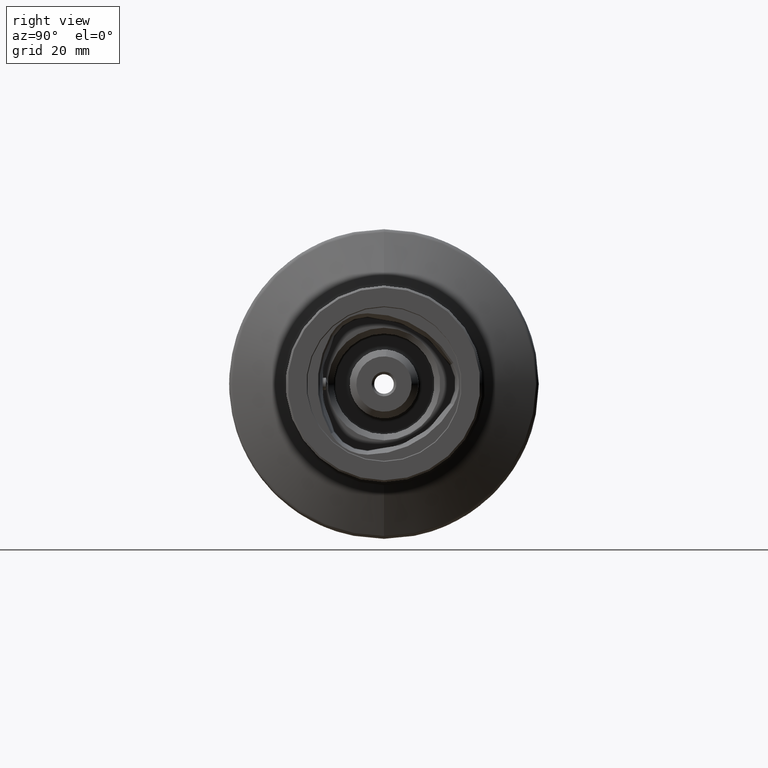
[diagram: clean part render]
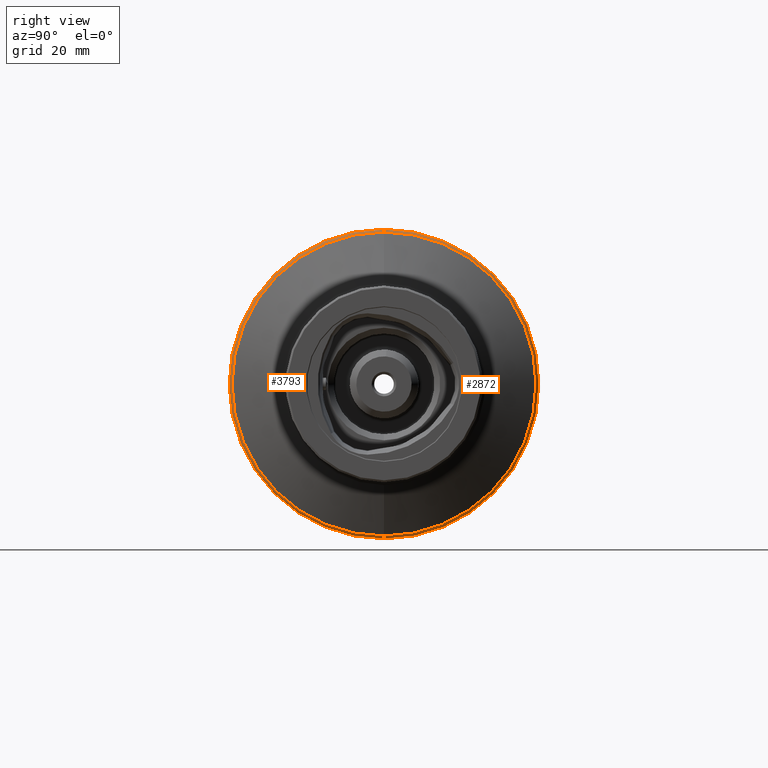
[diagram: same view with one multi-face feature highlighted, each face labeled with its STEP entity id]
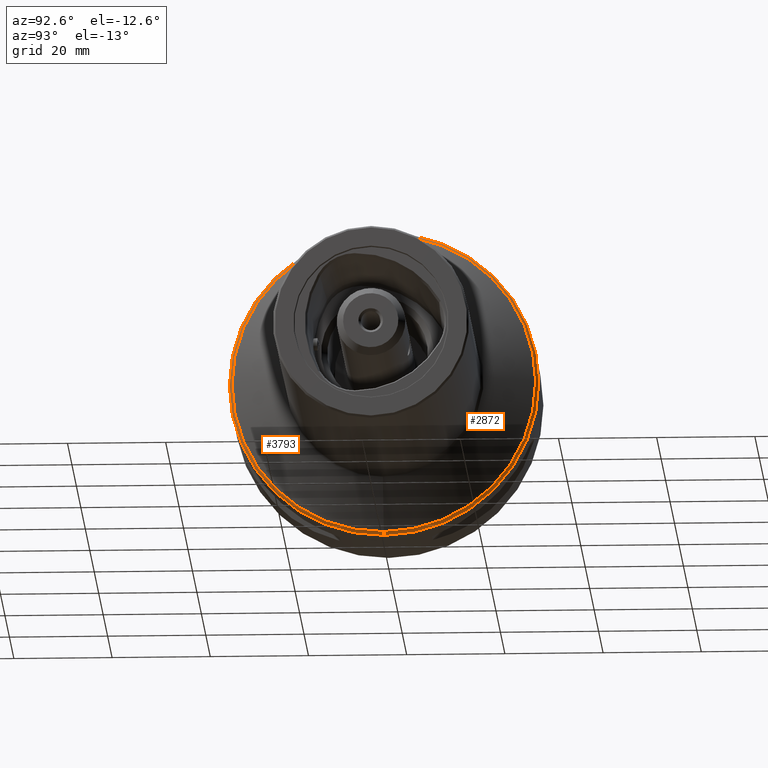
[diagram: same view with one multi-face feature highlighted, each face labeled with its STEP entity id]
A machine part, right view. The highlighted faces form ONE feature: a constant-radius fillet chain: 2 tangent blend faces with common blend radius 1 mm. The faces share edges in the B-rep.
A second angle (auxiliary view) of the same feature is appended — it is thin or edge-on in the first view.
Their STEP definitions:
[1] entity #2872 (Torus):
#150 = TOROIDAL_SURFACE ( 'NONE', #5644, 30.50000000000000000, 1.000000000000000000 ) ;
#306 = FACE_OUTER_BOUND ( 'NONE', #5561, .T. ) ;
#494 = VERTEX_POINT ( 'NONE', #1531 ) ;
#583 = EDGE_CURVE ( 'NONE', #4055, #3127, #1663, .T. ) ;
#1007 = EDGE_CURVE ( 'NONE', #494, #3127, #1476, .T. ) ;
#1476 = CIRCLE ( 'NONE', #5757, 1.000000000000000900 ) ;
#1531 = CARTESIAN_POINT ( 'NONE',  ( 21.36292973919250200, 0.0000000000000000000, 31.50000000000000000 ) ) ;
#1648 = AXIS2_PLACEMENT_3D ( 'NONE', #4849, #6560, #4924 ) ;
#1663 = CIRCLE ( 'NONE', #1954, 30.92261826174070500 ) ;
#1694 = AXIS2_PLACEMENT_3D ( 'NONE', #5582, #3992, #3970 ) ;
#1695 = CARTESIAN_POINT ( 'NONE',  ( 21.36292973919250200, 3.857637417314162700E-015, -31.50000000000000000 ) ) ;
#1954 = AXIS2_PLACEMENT_3D ( 'NONE', #3071, #6851, #4076 ) ;
#1971 = EDGE_CURVE ( 'NONE', #2731, #4055, #4819, .T. ) ;
#2123 = CARTESIAN_POINT ( 'NONE',  ( 21.36292973919250200, 0.0000000000000000000, 0.0000000000000000000 ) ) ;
#2517 = CARTESIAN_POINT ( 'NONE',  ( 22.26923752622914800, 0.0000000000000000000, 30.92261826174070500 ) ) ;
#2731 = VERTEX_POINT ( 'NONE', #1695 ) ;
#2784 = CARTESIAN_POINT ( 'NONE',  ( 21.36292973919250200, 3.735172737399427500E-015, 30.50000000000000000 ) ) ;
#2869 = EDGE_CURVE ( 'NONE', #494, #2731, #4291, .T. ) ;
#2872 = ADVANCED_FACE ( 'NONE', ( #306 ), #150, .T. ) ;
#2889 = ORIENTED_EDGE ( 'NONE', *, *, #1007, .T. ) ;
#3071 = CARTESIAN_POINT ( 'NONE',  ( 22.26923752622914800, 0.0000000000000000000, 0.0000000000000000000 ) ) ;
#3127 = VERTEX_POINT ( 'NONE', #2517 ) ;
#3961 = ORIENTED_EDGE ( 'NONE', *, *, #2869, .F. ) ;
#3970 = DIRECTION ( 'NONE',  ( 0.0000000000000000000, 0.0000000000000000000, -1.000000000000000000 ) ) ;
#3992 = DIRECTION ( 'NONE',  ( 0.0000000000000000000, -1.000000000000000000, 0.0000000000000000000 ) ) ;
#4055 = VERTEX_POINT ( 'NONE', #4459 ) ;
#4076 = DIRECTION ( 'NONE',  ( 0.0000000000000000000, 0.0000000000000000000, -1.000000000000000000 ) ) ;
#4291 = CIRCLE ( 'NONE', #1648, 31.50000000000000000 ) ;
#4310 = DIRECTION ( 'NONE',  ( 1.000000000000000000, 0.0000000000000000000, 0.0000000000000000000 ) ) ;
#4459 = CARTESIAN_POINT ( 'NONE',  ( 22.26923752622914800, 3.786928547549624100E-015, -30.92261826174070500 ) ) ;
#4819 = CIRCLE ( 'NONE', #1694, 1.000000000000000900 ) ;
#4849 = CARTESIAN_POINT ( 'NONE',  ( 21.36292973919250200, 0.0000000000000000000, 0.0000000000000000000 ) ) ;
#4924 = DIRECTION ( 'NONE',  ( 0.0000000000000000000, 0.0000000000000000000, -1.000000000000000000 ) ) ;
#5487 = ORIENTED_EDGE ( 'NONE', *, *, #1971, .F. ) ;
#5561 = EDGE_LOOP ( 'NONE', ( #3961, #2889, #5867, #5487 ) ) ;
#5582 = CARTESIAN_POINT ( 'NONE',  ( 21.36292973919250200, 0.0000000000000000000, -30.50000000000000000 ) ) ;
#5644 = AXIS2_PLACEMENT_3D ( 'NONE', #2123, #4310, #6531 ) ;
#5747 = DIRECTION ( 'NONE',  ( 0.0000000000000000000, 1.224646799147349500E-016, 1.000000000000000000 ) ) ;
#5757 = AXIS2_PLACEMENT_3D ( 'NONE', #2784, #6467, #5747 ) ;
#5867 = ORIENTED_EDGE ( 'NONE', *, *, #583, .F. ) ;
#6467 = DIRECTION ( 'NONE',  ( 0.0000000000000000000, 1.000000000000000000, -1.224646799147353200E-016 ) ) ;
#6531 = DIRECTION ( 'NONE',  ( 0.0000000000000000000, 0.0000000000000000000, -1.000000000000000000 ) ) ;
#6560 = DIRECTION ( 'NONE',  ( -1.000000000000000000, -0.0000000000000000000, -0.0000000000000000000 ) ) ;
#6851 = DIRECTION ( 'NONE',  ( 1.000000000000000000, 0.0000000000000000000, 0.0000000000000000000 ) ) ;
[2] entity #3793 (Torus):
#494 = VERTEX_POINT ( 'NONE', #1531 ) ;
#551 = DIRECTION ( 'NONE',  ( 1.000000000000000000, 0.0000000000000000000, 0.0000000000000000000 ) ) ;
#634 = DIRECTION ( 'NONE',  ( -1.000000000000000000, -0.0000000000000000000, -0.0000000000000000000 ) ) ;
#1007 = EDGE_CURVE ( 'NONE', #494, #3127, #1476, .T. ) ;
#1022 = EDGE_LOOP ( 'NONE', ( #6402, #1321, #6578, #6942 ) ) ;
#1321 = ORIENTED_EDGE ( 'NONE', *, *, #6205, .F. ) ;
#1463 = AXIS2_PLACEMENT_3D ( 'NONE', #3776, #551, #4336 ) ;
#1476 = CIRCLE ( 'NONE', #5757, 1.000000000000000900 ) ;
#1486 = FACE_OUTER_BOUND ( 'NONE', #1022, .T. ) ;
#1531 = CARTESIAN_POINT ( 'NONE',  ( 21.36292973919250200, 0.0000000000000000000, 31.50000000000000000 ) ) ;
#1694 = AXIS2_PLACEMENT_3D ( 'NONE', #5582, #3992, #3970 ) ;
#1695 = CARTESIAN_POINT ( 'NONE',  ( 21.36292973919250200, 3.857637417314162700E-015, -31.50000000000000000 ) ) ;
#1971 = EDGE_CURVE ( 'NONE', #2731, #4055, #4819, .T. ) ;
#2221 = CARTESIAN_POINT ( 'NONE',  ( 22.26923752622914800, 0.0000000000000000000, 0.0000000000000000000 ) ) ;
#2388 = AXIS2_PLACEMENT_3D ( 'NONE', #2707, #634, #4462 ) ;
#2420 = TOROIDAL_SURFACE ( 'NONE', #1463, 30.50000000000000000, 1.000000000000000000 ) ;
#2517 = CARTESIAN_POINT ( 'NONE',  ( 22.26923752622914800, 0.0000000000000000000, 30.92261826174070500 ) ) ;
#2674 = DIRECTION ( 'NONE',  ( 1.000000000000000000, 0.0000000000000000000, 0.0000000000000000000 ) ) ;
#2707 = CARTESIAN_POINT ( 'NONE',  ( 21.36292973919250200, 0.0000000000000000000, 0.0000000000000000000 ) ) ;
#2731 = VERTEX_POINT ( 'NONE', #1695 ) ;
#2784 = CARTESIAN_POINT ( 'NONE',  ( 21.36292973919250200, 3.735172737399427500E-015, 30.50000000000000000 ) ) ;
#3127 = VERTEX_POINT ( 'NONE', #2517 ) ;
#3776 = CARTESIAN_POINT ( 'NONE',  ( 21.36292973919250200, 0.0000000000000000000, 0.0000000000000000000 ) ) ;
#3793 = ADVANCED_FACE ( 'NONE', ( #1486 ), #2420, .T. ) ;
#3970 = DIRECTION ( 'NONE',  ( 0.0000000000000000000, 0.0000000000000000000, -1.000000000000000000 ) ) ;
#3992 = DIRECTION ( 'NONE',  ( 0.0000000000000000000, -1.000000000000000000, 0.0000000000000000000 ) ) ;
#4055 = VERTEX_POINT ( 'NONE', #4459 ) ;
#4304 = AXIS2_PLACEMENT_3D ( 'NONE', #2221, #2674, #4326 ) ;
#4326 = DIRECTION ( 'NONE',  ( 0.0000000000000000000, 0.0000000000000000000, -1.000000000000000000 ) ) ;
#4336 = DIRECTION ( 'NONE',  ( 0.0000000000000000000, 0.0000000000000000000, -1.000000000000000000 ) ) ;
#4459 = CARTESIAN_POINT ( 'NONE',  ( 22.26923752622914800, 3.786928547549624100E-015, -30.92261826174070500 ) ) ;
#4462 = DIRECTION ( 'NONE',  ( 0.0000000000000000000, 0.0000000000000000000, -1.000000000000000000 ) ) ;
#4819 = CIRCLE ( 'NONE', #1694, 1.000000000000000900 ) ;
#5537 = CIRCLE ( 'NONE', #2388, 31.50000000000000000 ) ;
#5582 = CARTESIAN_POINT ( 'NONE',  ( 21.36292973919250200, 0.0000000000000000000, -30.50000000000000000 ) ) ;
#5747 = DIRECTION ( 'NONE',  ( 0.0000000000000000000, 1.224646799147349500E-016, 1.000000000000000000 ) ) ;
#5757 = AXIS2_PLACEMENT_3D ( 'NONE', #2784, #6467, #5747 ) ;
#6121 = CIRCLE ( 'NONE', #4304, 30.92261826174070500 ) ;
#6205 = EDGE_CURVE ( 'NONE', #2731, #494, #5537, .T. ) ;
#6275 = EDGE_CURVE ( 'NONE', #3127, #4055, #6121, .T. ) ;
#6402 = ORIENTED_EDGE ( 'NONE', *, *, #1007, .F. ) ;
#6467 = DIRECTION ( 'NONE',  ( 0.0000000000000000000, 1.000000000000000000, -1.224646799147353200E-016 ) ) ;
#6578 = ORIENTED_EDGE ( 'NONE', *, *, #1971, .T. ) ;
#6942 = ORIENTED_EDGE ( 'NONE', *, *, #6275, .F. ) ;